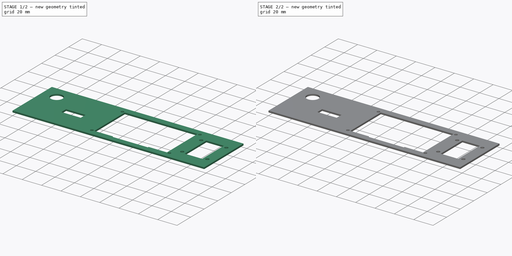
[diagram: build sequence overview — one tinted view per stage of 2, left to right]
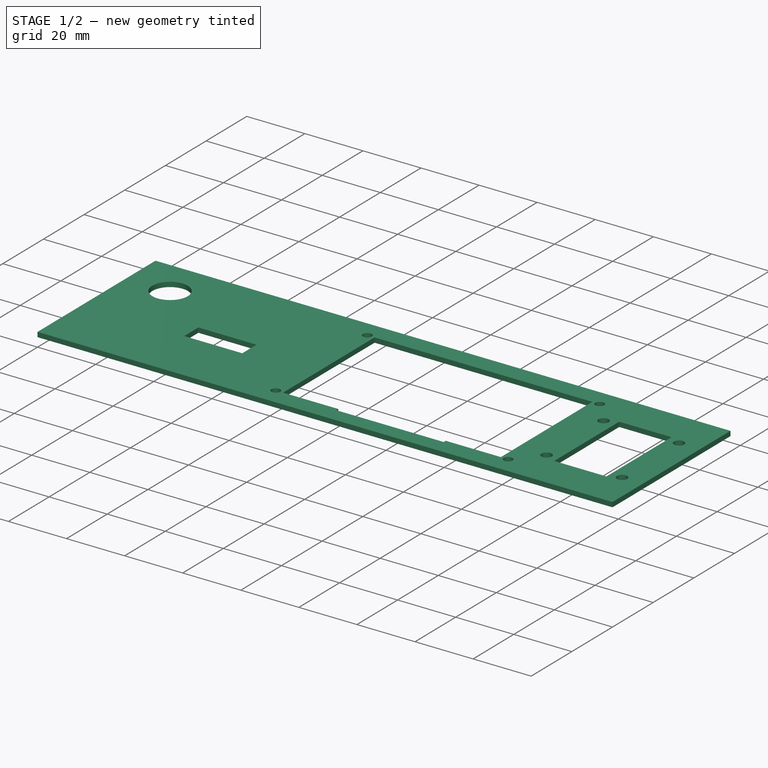
[diagram: stage 1 of 2 — iso view after this stage's code; geometry added in this stage tinted green]
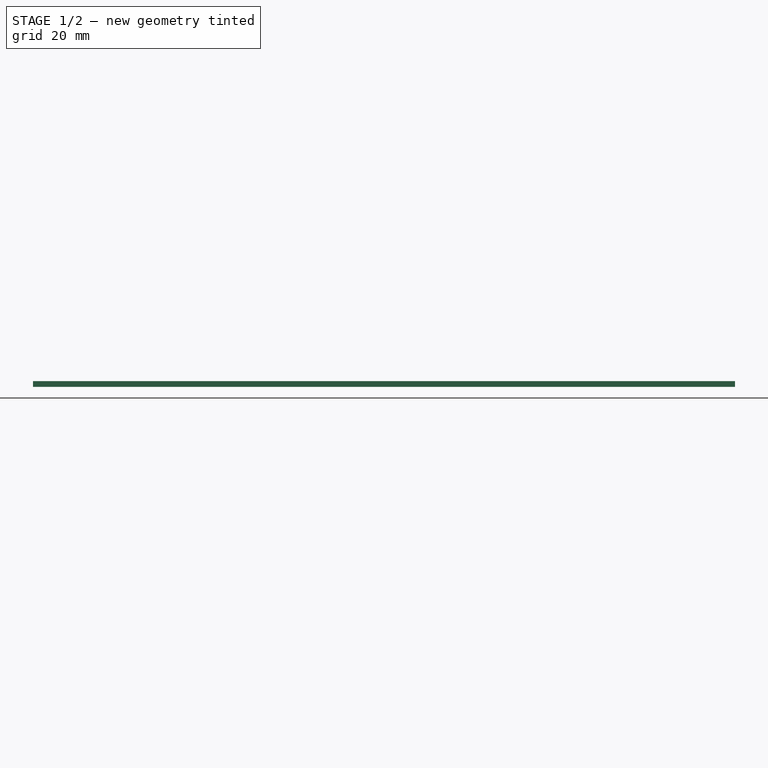
[diagram: stage 1 of 2 — front view after this stage's code; geometry added in this stage tinted green]
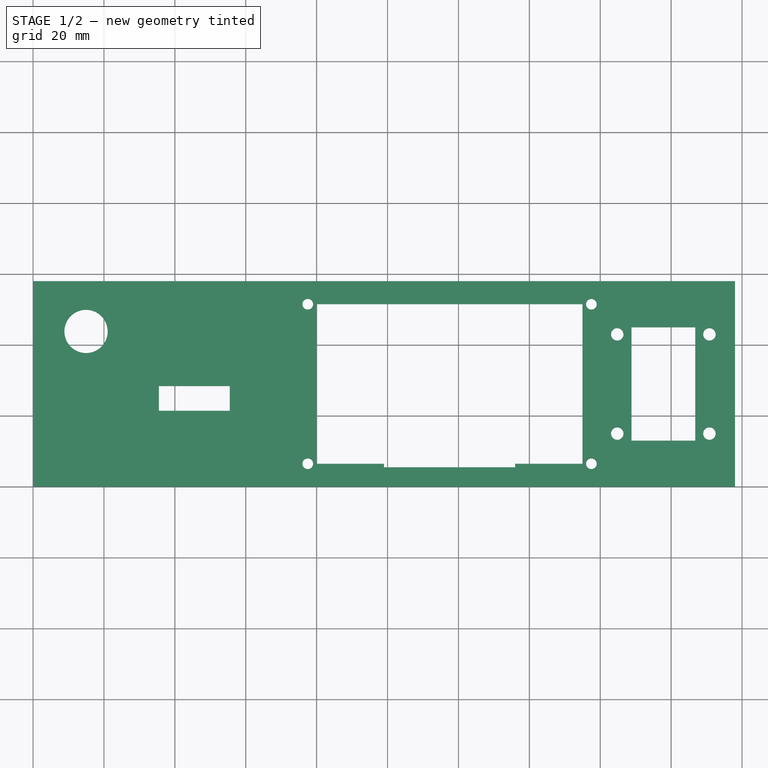
[diagram: stage 1 of 2 — top view after this stage's code; geometry added in this stage tinted green]
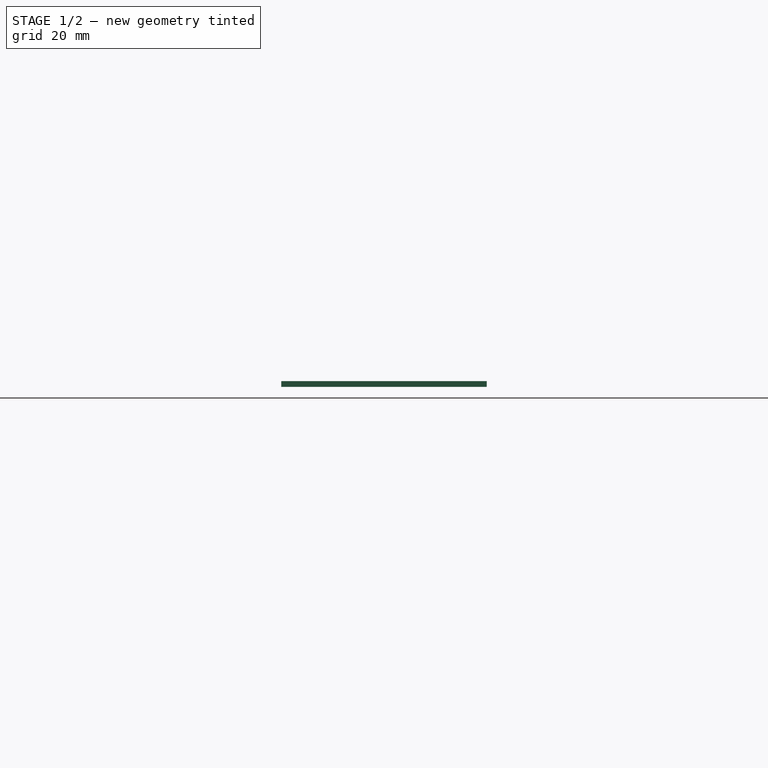
[diagram: stage 1 of 2 — right view after this stage's code; geometry added in this stage tinted green]
FCSTD DOCUMENT  (FreeCAD 0.18R4 (GitTag))
Label: front panel dbk
License: All rights reserved
LicenseURL: http://en.wikipedia.org/wiki/All_rights_reserved
objects: Sketcher::SketchObject×3, PartDesign::Pocket×2, PartDesign::Pad×1, PartDesign::Body×1, App::Part×1
note: 10 computed .brp shape members not serialized (recipe doc carries the construction recipe); baked Part::Feature solids carry a one-line shape summary decoded from their .brp

FEATURE [Sketcher::SketchObject] Sketch
  MapMode = 5
  Support = -> [XY_Plane001]
  sketch-geometry (4):
    g0: LineSegment StartX=0 StartY=0 StartZ=0 EndX=198 EndY=0 EndZ=0
    g1: LineSegment StartX=198 StartY=0 StartZ=0 EndX=198 EndY=58 EndZ=0
    g2: LineSegment StartX=198 StartY=58 StartZ=0 EndX=0 EndY=58 EndZ=0
    g3: LineSegment StartX=0 StartY=58 StartZ=0 EndX=0 EndY=0 EndZ=0
  constraints (11):
    c: Coincident(g0,g1)
    c: Coincident(g1,g2)
    c: Coincident(g2,g3)
    c: Coincident(g3,g0)
    c: Horizontal(g0)
    c: Horizontal(g2)
    c: Vertical(g1)
    c: Vertical(g3)
    c: Coincident(g-1,g0)
    c: DistanceX(g2,g2) = 198
    c: DistanceY(g3,g3) = 58
FEATURE [PartDesign::Pad] Pad
  Length = 1.65
  Length2 = 100
  Profile = -> Sketch
  Type = 0
FEATURE [Sketcher::SketchObject] Sketch001
  MapMode = 5
  Placement = pos=(0,0,1.65) rot=(0,0,1;0rad)
  Support = -> [Pad]
  sketch-geometry (50):
    g0: LineSegment [constr] StartX=2.2 StartY=1.425 StartZ=0 EndX=195.8 EndY=1.425 EndZ=0
    g1: LineSegment [constr] StartX=195.8 StartY=1.425 StartZ=0 EndX=195.8 EndY=56.575 EndZ=0
    g2: LineSegment [constr] StartX=195.8 StartY=56.575 StartZ=0 EndX=2.2 EndY=56.575 EndZ=0
    g3: LineSegment [constr] StartX=2.2 StartY=56.575 StartZ=0 EndX=2.2 EndY=1.425 EndZ=0
    g4: LineSegment [constr] StartX=7.2 StartY=36.075 StartZ=0 EndX=22.7 EndY=36.075 EndZ=0
    g5: LineSegment [constr] StartX=22.7 StartY=36.075 StartZ=0 EndX=22.7 EndY=51.575 EndZ=0
    g6: LineSegment [constr] StartX=22.7 StartY=51.575 StartZ=0 EndX=7.2 EndY=51.575 EndZ=0
    g7: LineSegment [constr] StartX=7.2 StartY=51.575 StartZ=0 EndX=7.2 EndY=36.075 EndZ=0
    g8: LineSegment [constr] StartX=7.2 StartY=36.075 StartZ=0 EndX=22.7 EndY=51.575 EndZ=0
    g9: LineSegment [constr] StartX=7.2 StartY=51.575 StartZ=0 EndX=22.7 EndY=36.075 EndZ=0
    g10: Circle CenterX=14.95 CenterY=43.825 CenterZ=0 NormalX=0 NormalY=0 NormalZ=1 AngleXU=0 Radius=6.1
    g11: LineSegment [constr] StartX=162.3 StartY=46 StartZ=0 EndX=193.3 EndY=46 EndZ=0
    g12: LineSegment [constr] StartX=193.3 StartY=46 StartZ=0 EndX=193.3 EndY=12 EndZ=0
    g13: LineSegment [constr] StartX=193.3 StartY=12 StartZ=0 EndX=162.3 EndY=12 EndZ=0
    g14: LineSegment [constr] StartX=162.3 StartY=12 StartZ=0 EndX=162.3 EndY=46 EndZ=0
    g15: Circle CenterX=164.8 CenterY=43 CenterZ=0 NormalX=0 NormalY=0 NormalZ=1 AngleXU=0 Radius=1.75
    g16: Circle CenterX=190.8 CenterY=43 CenterZ=0 NormalX=0 NormalY=0 NormalZ=1 AngleXU=0 Radius=1.75
    g17: LineSegment [constr] StartX=164.8 StartY=43 StartZ=0 EndX=190.8 EndY=43 EndZ=0
    g18: Circle CenterX=164.8 CenterY=15 CenterZ=0 NormalX=0 NormalY=0 NormalZ=1 AngleXU=0 Radius=1.75
    g19: LineSegment [constr] StartX=164.8 StartY=43 StartZ=0 EndX=164.8 EndY=15 EndZ=0
    g20: Circle CenterX=190.8 CenterY=15 CenterZ=0 NormalX=0 NormalY=0 NormalZ=1 AngleXU=0 Radius=1.75
    g21: LineSegment [constr] StartX=164.8 StartY=15 StartZ=0 EndX=190.8 EndY=15 EndZ=0
    g22: LineSegment StartX=168.8 StartY=45 StartZ=0 EndX=186.8 EndY=45 EndZ=0
    g23: LineSegment StartX=186.8 StartY=45 StartZ=0 EndX=186.8 EndY=13 EndZ=0
    g24: LineSegment StartX=186.8 StartY=13 StartZ=0 EndX=168.8 EndY=13 EndZ=0
    g25: LineSegment StartX=168.8 StartY=13 StartZ=0 EndX=168.8 EndY=45 EndZ=0
    g26: LineSegment [constr] StartX=75 StartY=54 StartZ=0 EndX=160 EndY=54 EndZ=0
    g27: LineSegment [constr] StartX=160 StartY=54 StartZ=0 EndX=160 EndY=4 EndZ=0
    g28: LineSegment [constr] StartX=160 StartY=4 StartZ=0 EndX=75 EndY=4 EndZ=0
    g29: LineSegment [constr] StartX=75 StartY=4 StartZ=0 EndX=75 EndY=54 EndZ=0
    g30: LineSegment StartX=35.49 StartY=28.425 StartZ=0 EndX=55.49 EndY=28.425 EndZ=0
    g31: LineSegment StartX=55.49 StartY=28.425 StartZ=0 EndX=55.49 EndY=21.425 EndZ=0
    g32: LineSegment StartX=55.49 StartY=21.425 StartZ=0 EndX=35.49 EndY=21.425 EndZ=0
    g33: LineSegment StartX=35.49 StartY=21.425 StartZ=0 EndX=35.49 EndY=28.425 EndZ=0
    g34: LineSegment [constr] StartX=25.28 StartY=46.425 StartZ=0 EndX=71 EndY=46.425 EndZ=0
    g35: LineSegment [constr] StartX=71 StartY=46.425 StartZ=0 EndX=71 EndY=11.425 EndZ=0
    g36: LineSegment [constr] StartX=71 StartY=11.425 StartZ=0 EndX=25.28 EndY=11.425 EndZ=0
    g37: LineSegment [constr] StartX=25.28 StartY=11.425 StartZ=0 EndX=25.28 EndY=46.425 EndZ=0
    g38: Circle CenterX=77.5 CenterY=51.5 CenterZ=0 NormalX=0 NormalY=0 NormalZ=1 AngleXU=0 Radius=1.5
    g39: Circle CenterX=77.5 CenterY=6.5 CenterZ=0 NormalX=0 NormalY=0 NormalZ=1 AngleXU=0 Radius=1.5
    g40: Circle CenterX=157.5 CenterY=6.5 CenterZ=0 NormalX=0 NormalY=0 NormalZ=1 AngleXU=0 Radius=1.5
    g41: Circle CenterX=157.5 CenterY=51.5 CenterZ=0 NormalX=0 NormalY=0 NormalZ=1 AngleXU=0 Radius=1.5
    g42: LineSegment StartX=80 StartY=51.5 StartZ=0 EndX=155 EndY=51.5 EndZ=0
    g43: LineSegment StartX=155 StartY=51.5 StartZ=0 EndX=155 EndY=6.5 EndZ=0
    g44: LineSegment StartX=155 StartY=6.5 StartZ=0 EndX=136 EndY=6.5 EndZ=0
    g45: LineSegment StartX=136 StartY=6.5 StartZ=0 EndX=136 EndY=5.5 EndZ=0
    g46: LineSegment StartX=136 StartY=5.5 StartZ=0 EndX=99 EndY=5.5 EndZ=0
    g47: LineSegment StartX=99 StartY=5.5 StartZ=0 EndX=99 EndY=6.5 EndZ=0
    g48: LineSegment StartX=99 StartY=6.5 StartZ=0 EndX=80 EndY=6.5 EndZ=0
    g49: LineSegment StartX=80 StartY=6.5 StartZ=0 EndX=80 EndY=51.5 EndZ=0
  constraints (145):
    c: Coincident(g0,g1)
    c: Coincident(g1,g2)
    c: Coincident(g2,g3)
    c: Coincident(g3,g0)
    c: Horizontal(g0)
    c: Horizontal(g2)
    c: Vertical(g1)
    c: Vertical(g3)
    c: DistanceX(g2,g2) = 193.6
    c: DistanceY(g3,g3) = 55.15
    c: DistanceY(g-1,g0) = 1.425
    c: DistanceX(g-1,g0) = 2.2
    c: Coincident(g4,g5)
    c: Coincident(g5,g6)
    c: Coincident(g6,g7)
    c: Coincident(g7,g4)
    c: Horizontal(g4)
    c: Horizontal(g6)
    c: Vertical(g5)
    c: Vertical(g7)
    c: DistanceY(g7,g7) = 15.5
    c: DistanceX(g6,g6) = 15.5
    c: Coincident(g9,g6)
    c: Coincident(g8,g5)
    c: Coincident(g8,g4)
    c: Coincident(g9,g4)
    c: Diameter(g10) = 12.2
    c: PointOnObject(g10,g9)
    c: PointOnObject(g10,g8)
    c: DistanceY(g6,g2) = 5
    c: DistanceX(g2,g6) = 5
    c: Coincident(g11,g12)
    c: Coincident(g12,g13)
    c: Coincident(g13,g14)
    c: Coincident(g14,g11)
    c: Horizontal(g11)
    c: Horizontal(g13)
    c: Vertical(g12)
    c: Vertical(g14)
    c: DistanceY(g14,g14) = 34
    c: DistanceX(g11,g11) = 31
    c: Diameter(g15) = 3.5
    c: Equal(g15,g16) = 3.5
    c: Coincident(g15,g17)
    c: Coincident(g16,g17)
    c: Distance(g17) = 26
    c: Angle(g17) = 0
    c: Equal(g15,g18) = 3.5
    c: Coincident(g15,g19)
    c: Coincident(g18,g19)
    c: Distance(g19) = 28
    c: Perpendicular(g19,g17)
    c: Equal(g15,g20) = 3.5
    c: Coincident(g18,g21)
    c: Coincident(g20,g21)
    c: Equal(g17,g21)
    c: Parallel(g21,g17)
    c: DistanceY(g13,g18) = 3
    c: DistanceX(g13,g18) = 2.5
    c: Coincident(g22,g23)
    c: Coincident(g23,g24)
    c: Coincident(g24,g25)
    c: Coincident(g25,g22)
    c: Horizontal(g22)
    c: Horizontal(g24)
    c: Vertical(g23)
    c: Vertical(g25)
    c: DistanceX(g22,g22) = 18
    c: DistanceY(g25,g25) = 32
    c: DistanceY(g12,g23) = 1
    c: DistanceX(g23,g12) = 6.5
    c: Coincident(g26,g27)
    c: Coincident(g27,g28)
    c: Coincident(g28,g29)
    c: Coincident(g29,g26)
    c: Horizontal(g26)
    c: Horizontal(g28)
    c: Vertical(g27)
    c: Vertical(g29)
    c: DistanceX(g26,g26) = 85
    c: DistanceY(g29,g29) = 50
    c: DistanceY(g11,g1) = 10.575
    c: DistanceY(g26,g1) = 2.575
    c: DistanceX(g11,g1) = 2.5
    c: Coincident(g30,g31)
    c: Coincident(g31,g32)
    c: Coincident(g32,g33)
    c: Coincident(g33,g30)
    c: Horizontal(g30)
    c: Horizontal(g32)
    c: Vertical(g31)
    c: Vertical(g33)
    c: DistanceY(g31,g31) = 7
    c: DistanceX(g30,g30) = 20
    c: DistanceY(g0,g32) = 20
    c: Coincident(g34,g35)
    c: Coincident(g35,g36)
    c: Coincident(g36,g37)
    c: Coincident(g37,g34)
    c: Horizontal(g34)
    c: Horizontal(g36)
    c: Vertical(g35)
    c: Vertical(g37)
    c: DistanceX(g30,g34) = 15.51
    c: DistanceX(g36,g36) = 45.72
    c: DistanceY(g0,g36) = 10
    c: DistanceY(g37,g37) = 35
    c: DistanceX(g34,g26) = 4
    c: DistanceX(g0,g28) = 72.8
    c: Diameter(g38) = 3
    c: Equal(g38,g39)
    c: Equal(g39,g41)
    c: Equal(g41,g40)
    c: DistanceX(g26,g38) = 2.5
    c: DistanceX(g28,g39) = 2.5
    c: DistanceX(g40,g27) = 2.5
    c: DistanceX(g41,g26) = 2.5
    c: DistanceY(g38,g26) = 2.5
    c: DistanceY(g28,g39) = 2.5
    c: DistanceY(g27,g40) = 2.5
    c: DistanceY(g41,g26) = 2.5
    c: Coincident(g42,g43)
    c: Coincident(g43,g44)
    c: Coincident(g44,g45)
    c: Coincident(g45,g46)
    c: Coincident(g46,g47)
    c: Coincident(g47,g48)
    c: Coincident(g48,g49)
    c: Coincident(g49,g42)
    c: Angle(g49,g42) = 1.5708
    c: Angle(g48,g49) = 1.5708
    c: Angle(g42) = 0
    c: Angle(g42,g43) = 1.5708
    c: Angle(g43,g44) = 1.5708
    c: Angle(g48,g47) = 1.5708
    c: Angle(g46,g47) = 1.5708
    c: Angle(g45,g46) = 1.5708
    c: DistanceX(g42,g42) = 75
    c: DistanceY(g49,g49) = 45
    c: Equal(g49,g43)
    c: Equal(g48,g44)
    c: DistanceX(g48,g48) = 19
    c: DistanceY(g42,g26) = 2.5
    c: DistanceX(g26,g42) = 5
    c: DistanceY(g47,g47) = 1
FEATURE [PartDesign::Pocket] Pocket
  BaseFeature = -> Pad
  Length = 5
  Length2 = 100
  Profile = -> Sketch001
  Type = 0
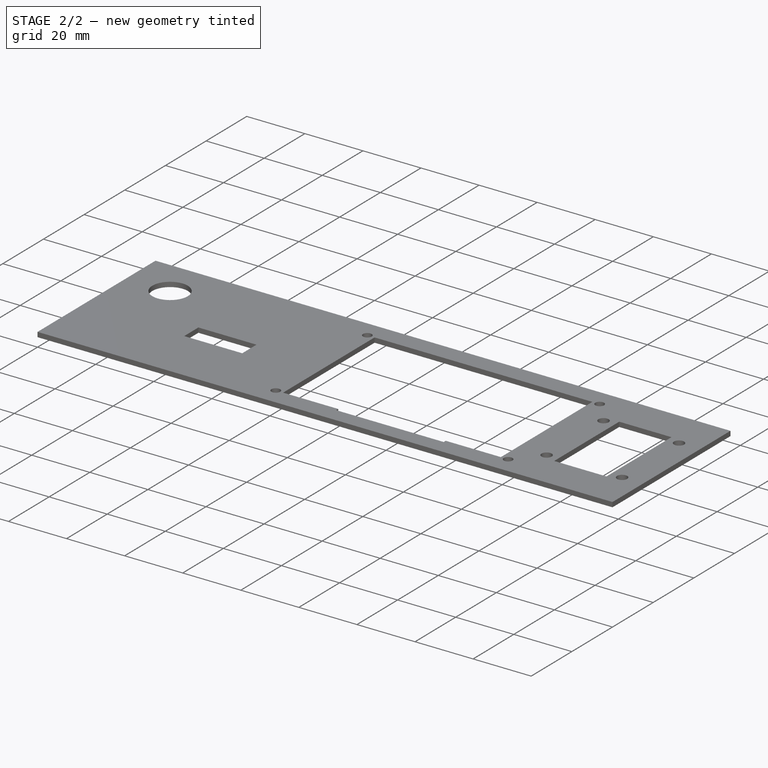
[diagram: stage 2 of 2 — iso view after this stage's code; geometry added in this stage tinted green]
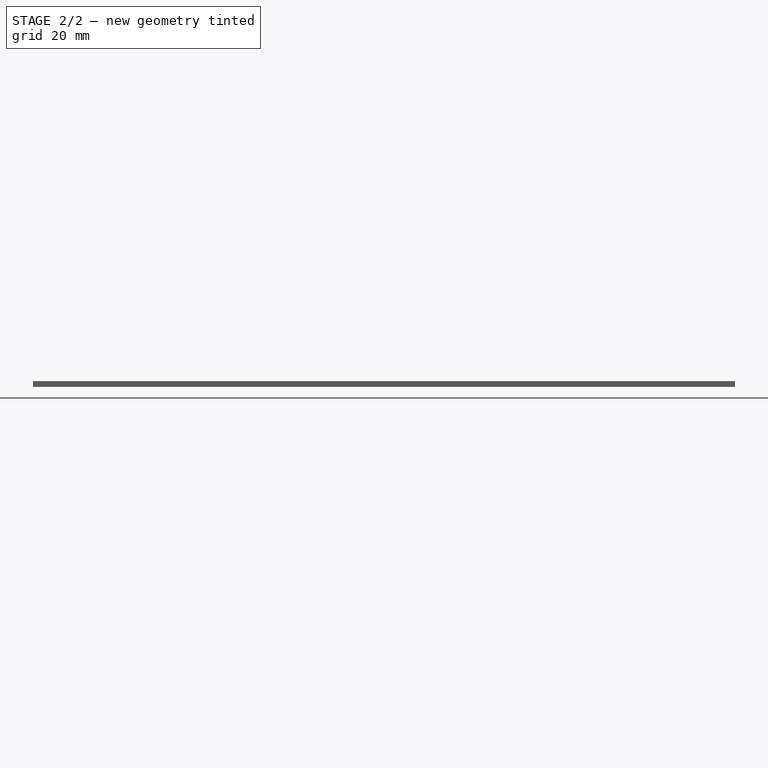
[diagram: stage 2 of 2 — front view after this stage's code; geometry added in this stage tinted green]
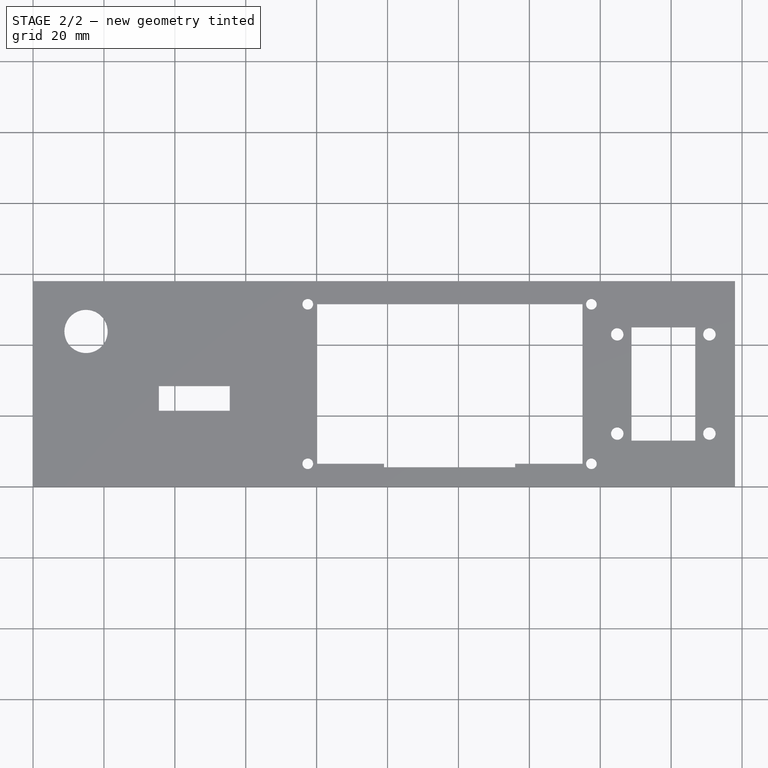
[diagram: stage 2 of 2 — top view after this stage's code; geometry added in this stage tinted green]
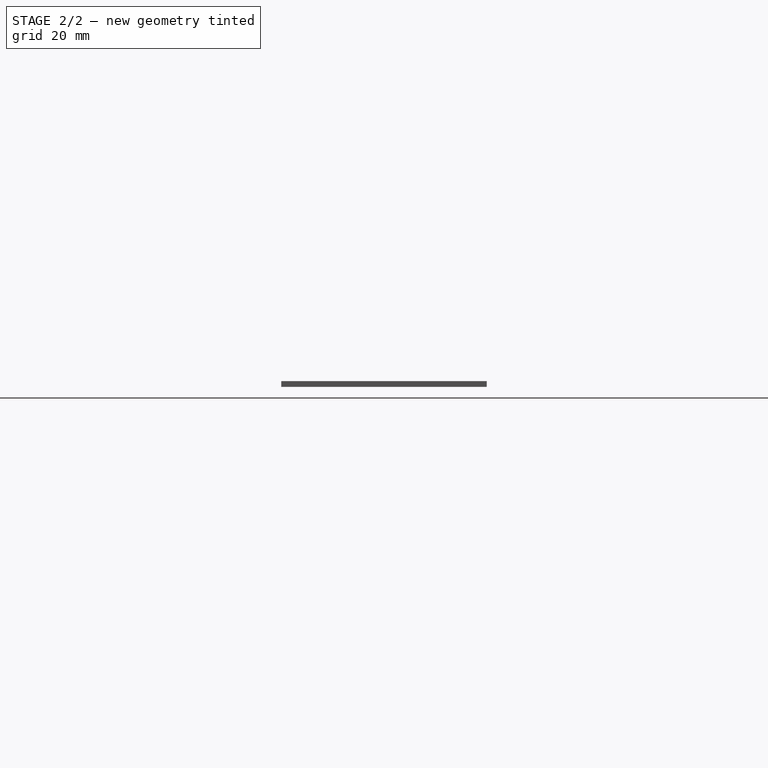
[diagram: stage 2 of 2 — right view after this stage's code; geometry added in this stage tinted green]
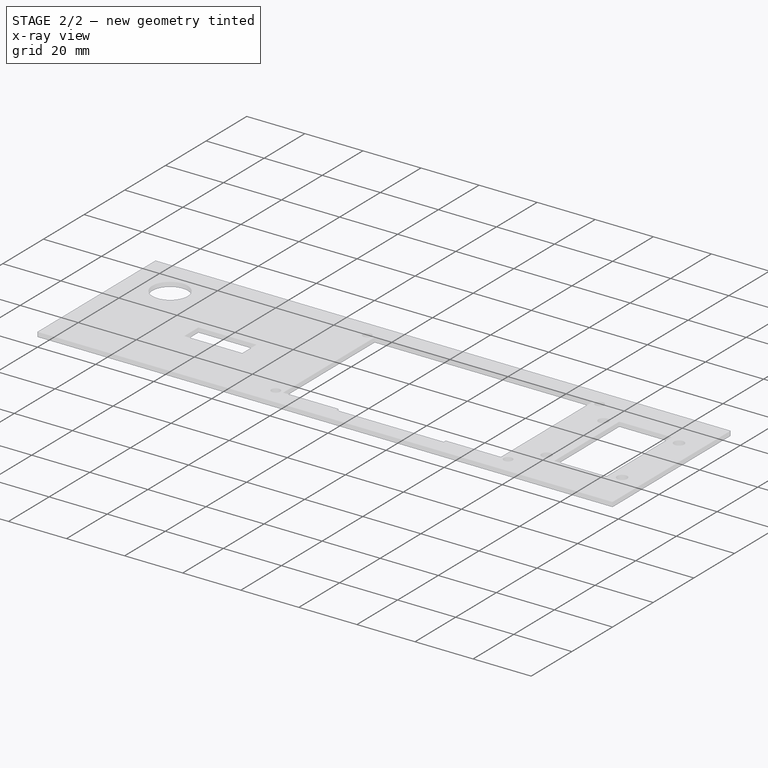
[diagram: stage 2 of 2 — x-ray composite at the iso view; earlier geometry ghosted, this stage's added geometry solid]
FEATURE [Sketcher::SketchObject] Sketch002
  MapMode = 5
  Support = -> [XY_Plane001]
  sketch-geometry (8):
    g0: LineSegment StartX=76 StartY=39.3 StartZ=0 EndX=79 EndY=39.3 EndZ=0
    g1: LineSegment StartX=79 StartY=39.3 StartZ=0 EndX=79 EndY=19 EndZ=0
    g2: LineSegment StartX=79 StartY=19 StartZ=0 EndX=76 EndY=19 EndZ=0
    g3: LineSegment StartX=76 StartY=19 StartZ=0 EndX=76 EndY=39.3 EndZ=0
    g4: LineSegment StartX=163.3 StartY=41 StartZ=0 EndX=166.3 EndY=41 EndZ=0
    g5: LineSegment StartX=166.3 StartY=41 StartZ=0 EndX=166.3 EndY=17 EndZ=0
    g6: LineSegment StartX=166.3 StartY=17 StartZ=0 EndX=163.3 EndY=17 EndZ=0
    g7: LineSegment StartX=163.3 StartY=17 StartZ=0 EndX=163.3 EndY=41 EndZ=0
  constraints (24):
    c: Coincident(g0,g1)
    c: Coincident(g1,g2)
    c: Coincident(g2,g3)
    c: Coincident(g3,g0)
    c: Horizontal(g0)
    c: Horizontal(g2)
    c: Vertical(g1)
    c: Vertical(g3)
    c: DistanceX(g0,g0) = 3
    c: DistanceY(g1,g1) = 20.3
    c: DistanceY(g-1,g2) = 19
    c: DistanceX(g-1,g2) = 76
    c: Coincident(g4,g5)
    c: Coincident(g5,g6)
    c: Coincident(g6,g7)
    c: Coincident(g7,g4)
    c: Horizontal(g4)
    c: Horizontal(g6)
    c: Vertical(g5)
    c: Vertical(g7)
    c: DistanceX(g-1,g6) = 163.3
    c: DistanceX(g4,g4) = 3
    c: DistanceY(g-1,g6) = 17
    c: DistanceY(g5,g5) = 24
FEATURE [PartDesign::Pocket] Pocket001
  BaseFeature = -> Pocket
  Length = 0.5
  Length2 = 100
  Profile = -> Sketch002
  Reversed = true
  Type = 0
FEATURE [PartDesign::Body] Body
  Group = -> [Sketch,Pad,Sketch001,Pocket,Sketch002,Pocket001]
  Origin = -> Origin001
  Tip = -> Pocket001
FEATURE [App::Part] Part
  Group = -> [Body]
  Origin = -> Origin
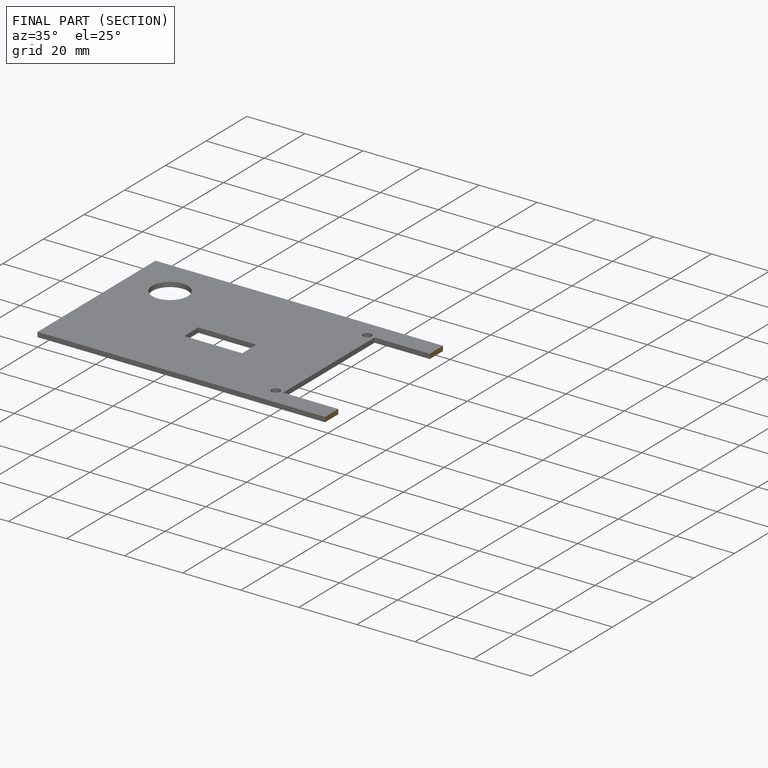
[diagram: finished part — half-section view (interior)]
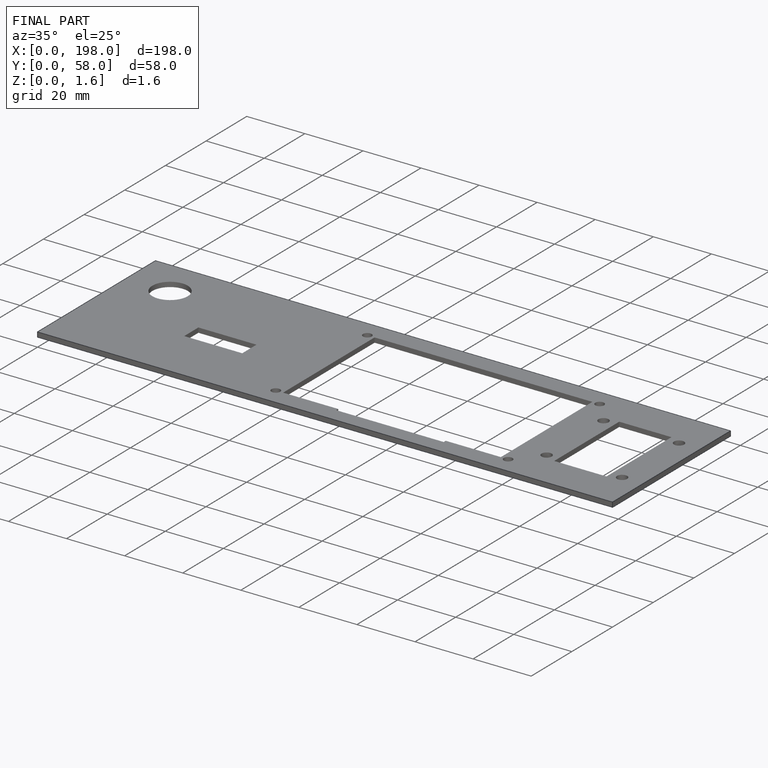
[diagram: finished part — iso view with bounding-box wireframe]
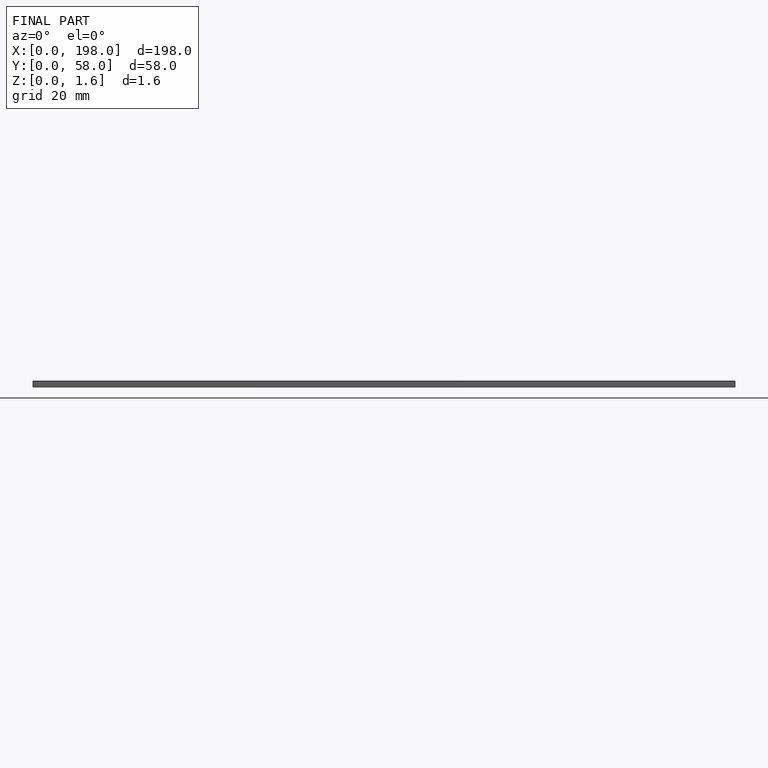
[diagram: finished part — front view with bounding-box wireframe]
